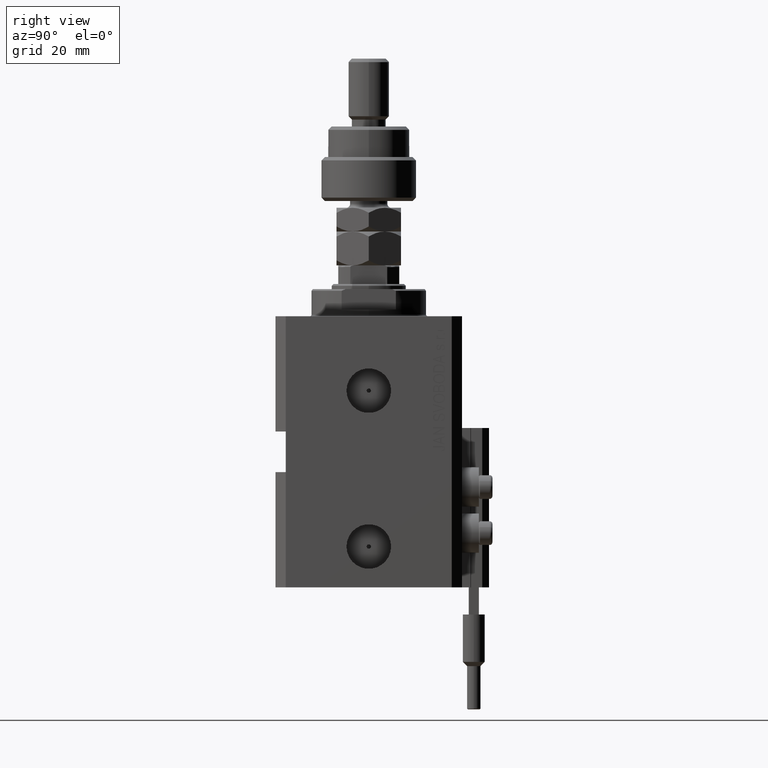
[diagram: clean part render]
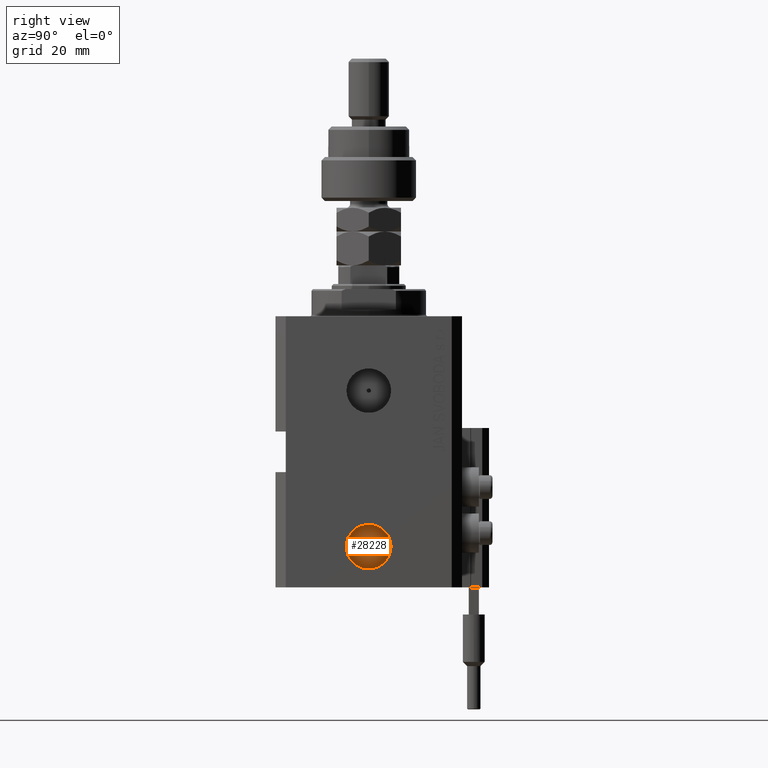
[diagram: same view with one face highlighted and labeled with its STEP entity id]
A machine part, right view. The second image highlights one B-rep face of the part: STEP entity #28228.
In plain terms, the highlighted planar face has unit normal (1, -0, 0).
Its self-contained STEP definition (entity closure, byte-faithful):
#147 = CARTESIAN_POINT ( 'NONE',  ( 24.40000000000025437, -2.287819767924812928E-13, -68.00000000000000000 ) ) ;
#584 = CARTESIAN_POINT ( 'NONE',  ( 24.40000000000034319, 6.579999999999758487, -68.00000000000000000 ) ) ;
#2602 = CIRCLE ( 'NONE', #9915, 0.6250000000000055511 ) ;
#3921 = CIRCLE ( 'NONE', #30002, 0.6250000000000055511 ) ;
#5130 = AXIS2_PLACEMENT_3D ( 'NONE', #147, #26701, #11856 ) ;
#8635 = VERTEX_POINT ( 'NONE', #47968 ) ;
#9915 = AXIS2_PLACEMENT_3D ( 'NONE', #22720, #42839, #10713 ) ;
#10713 = DIRECTION ( 'NONE',  ( 1.110223024625146759E-14, 1.000000000000000000, 0.000000000000000000 ) ) ;
#10933 = CIRCLE ( 'NONE', #30519, 6.579999999999987637 ) ;
#11648 = DIRECTION ( 'NONE',  ( 1.110223024625146759E-14, 1.000000000000000000, 0.000000000000000000 ) ) ;
#11856 = DIRECTION ( 'NONE',  ( 1.334402673828349134E-14, 1.000000000000000000, 0.000000000000000000 ) ) ;
#12190 = ORIENTED_EDGE ( 'NONE', *, *, #18467, .F. ) ;
#12765 = ORIENTED_EDGE ( 'NONE', *, *, #26391, .F. ) ;
#15405 = CIRCLE ( 'NONE', #39847, 6.579999999999987637 ) ;
#16689 = EDGE_CURVE ( 'NONE', #8635, #25039, #15405, .T. ) ;
#16917 = ORIENTED_EDGE ( 'NONE', *, *, #16689, .T. ) ;
#17914 = VERTEX_POINT ( 'NONE', #37385 ) ;
#18467 = EDGE_CURVE ( 'NONE', #24754, #17914, #3921, .T. ) ;
#20942 = CARTESIAN_POINT ( 'NONE',  ( 24.40000000000025437, -2.287819767924812928E-13, -68.00000000000000000 ) ) ;
#22578 = EDGE_LOOP ( 'NONE', ( #46956, #16917 ) ) ;
#22720 = CARTESIAN_POINT ( 'NONE',  ( 24.40000000000025437, -2.287819767924812928E-13, -68.00000000000000000 ) ) ;
#22883 = FACE_OUTER_BOUND ( 'NONE', #22578, .T. ) ;
#24414 = DIRECTION ( 'NONE',  ( 1.000000000000000000, -1.334402673828349134E-14, 0.000000000000000000 ) ) ;
#24641 = CARTESIAN_POINT ( 'NONE',  ( 24.40000000000024727, -0.6250000000002342571, -68.00000000000000000 ) ) ;
#24754 = VERTEX_POINT ( 'NONE', #24641 ) ;
#25039 = VERTEX_POINT ( 'NONE', #584 ) ;
#26032 = DIRECTION ( 'NONE',  ( 1.318178933113077855E-14, 1.000000000000000000, 0.000000000000000000 ) ) ;
#26065 = EDGE_LOOP ( 'NONE', ( #12765, #12190 ) ) ;
#26391 = EDGE_CURVE ( 'NONE', #17914, #24754, #2602, .T. ) ;
#26701 = DIRECTION ( 'NONE',  ( 1.000000000000000000, -1.334402673828349134E-14, 0.000000000000000000 ) ) ;
#26754 = DIRECTION ( 'NONE',  ( 1.000000000000000000, -1.334402673828349134E-14, 0.000000000000000000 ) ) ;
#28228 = ADVANCED_FACE ( 'NONE', ( #42264, #22883 ), #34605, .T. ) ;
#30002 = AXIS2_PLACEMENT_3D ( 'NONE', #43784, #24414, #11648 ) ;
#30519 = AXIS2_PLACEMENT_3D ( 'NONE', #20942, #33418, #26032 ) ;
#33418 = DIRECTION ( 'NONE',  ( 1.000000000000000000, -1.334402673828349134E-14, 0.000000000000000000 ) ) ;
#33771 = EDGE_CURVE ( 'NONE', #25039, #8635, #10933, .T. ) ;
#34605 = PLANE ( 'NONE',  #5130 ) ;
#37385 = CARTESIAN_POINT ( 'NONE',  ( 24.40000000000026148, 0.6249999999997767341, -68.00000000000000000 ) ) ;
#38246 = CARTESIAN_POINT ( 'NONE',  ( 24.40000000000025437, -2.287819767924812928E-13, -68.00000000000000000 ) ) ;
#38745 = DIRECTION ( 'NONE',  ( 1.318178933113077855E-14, 1.000000000000000000, 0.000000000000000000 ) ) ;
#39847 = AXIS2_PLACEMENT_3D ( 'NONE', #38246, #26754, #38745 ) ;
#42264 = FACE_BOUND ( 'NONE', #26065, .T. ) ;
#42839 = DIRECTION ( 'NONE',  ( 1.000000000000000000, -1.334402673828349134E-14, 0.000000000000000000 ) ) ;
#43784 = CARTESIAN_POINT ( 'NONE',  ( 24.40000000000025437, -2.287819767924812928E-13, -68.00000000000000000 ) ) ;
#46956 = ORIENTED_EDGE ( 'NONE', *, *, #33771, .T. ) ;
#47968 = CARTESIAN_POINT ( 'NONE',  ( 24.40000000000016911, -6.580000000000216787, -68.00000000000000000 ) ) ;